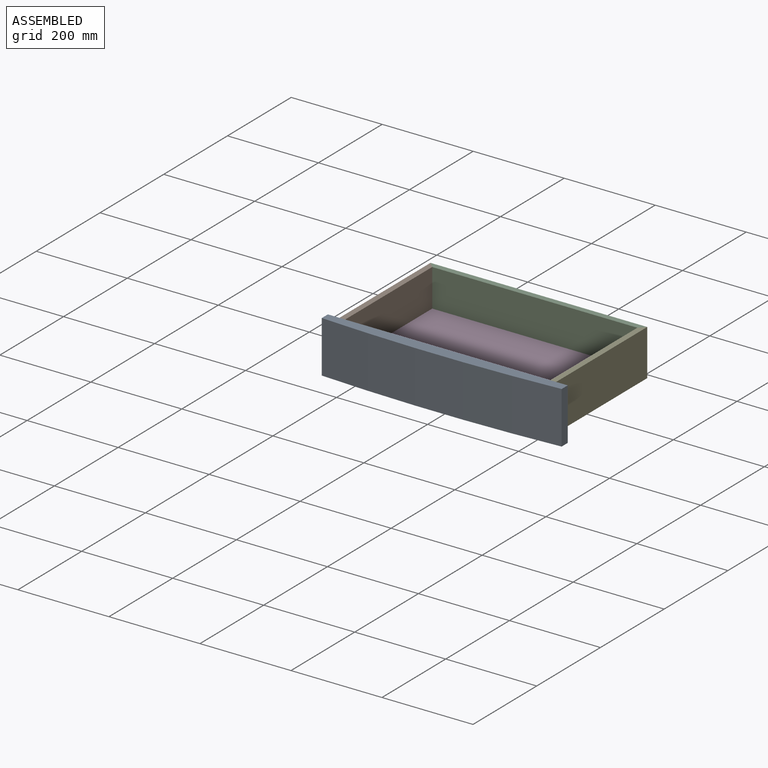
[diagram: assembled view]
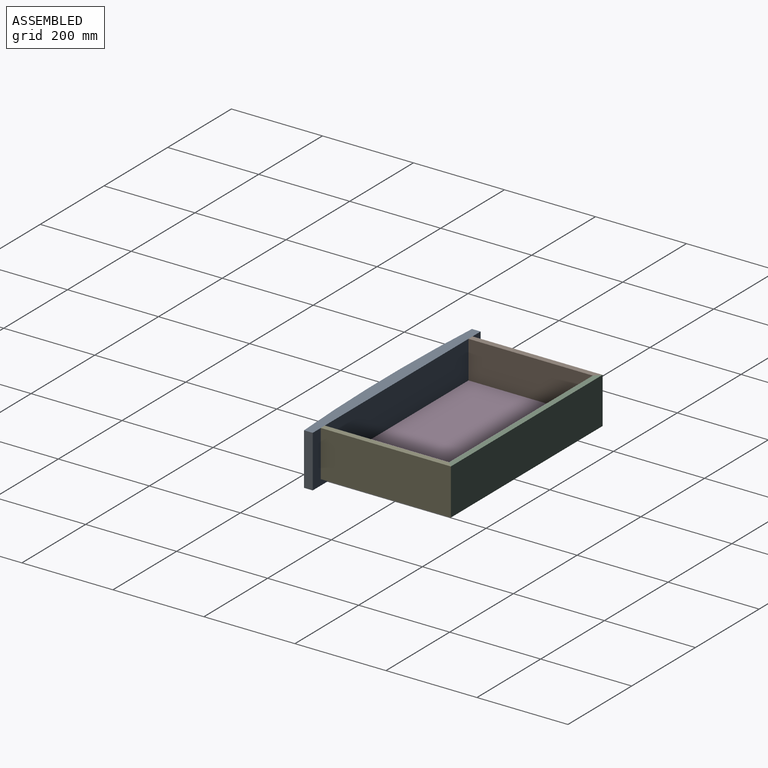
[diagram: assembled view, second angle]
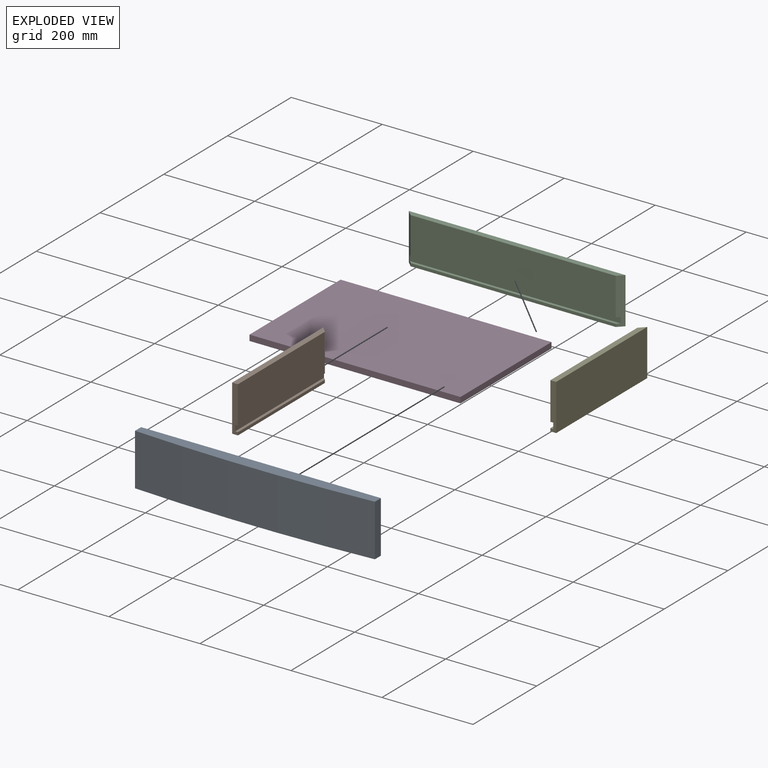
[diagram: exploded view]
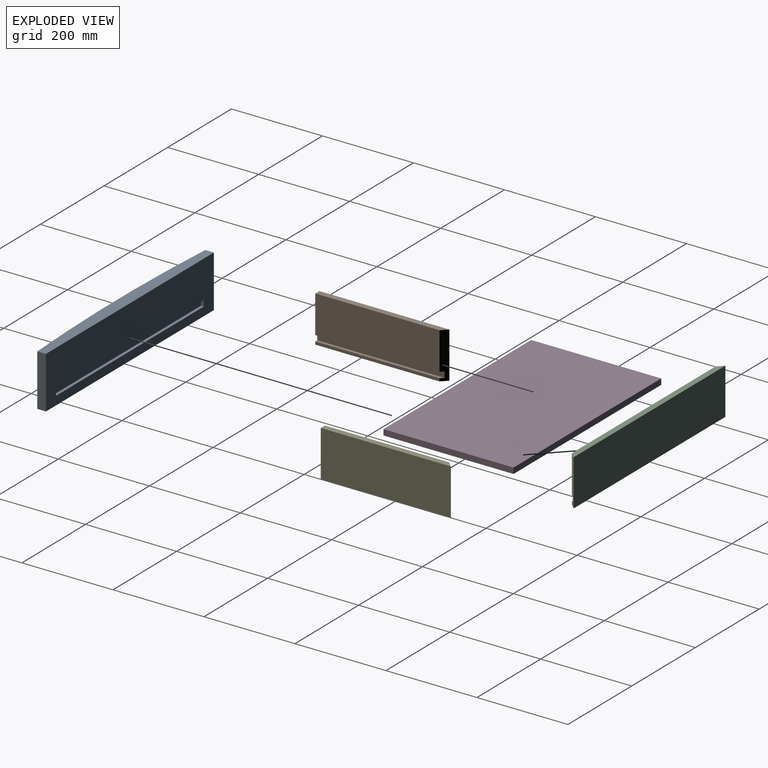
[diagram: exploded view, second angle]
ASSEMBLY  parts=5 mates=4
PART A: 11 faces, bbox 527.1x27.7x114.3 mm
  f0: plane 527.05x114.3mm, normal (0,1,0), area 54354.7mm2, adj f1,f3,f4,f5,f6,f7,f8,f9
  f1: plane 114.3x19.05mm, normal (1,0,0), area 2177.4mm2, adj f0,f2,f4,f5
  f2: cylinder r=4035.43mm len=527.05mm, axis (0,0,1), area 60284.7mm2, adj f1,f3,f4,f5
  f3: plane 114.3x19.05mm, normal (-1,0,0), area 2177.4mm2, adj f0,f2,f4,f5
  f4: plane 527.05x27.66mm, normal (0,0,1), area 13067.5mm2, adj f0,f1,f2,f3
  f5: plane 527.05x27.66mm, normal (0,0,-1), area 13067.5mm2, adj f0,f1,f2,f3
  f6: plane 463.55x6.35mm, normal (0,0,1), area 2943.5mm2, adj f0,f7,f9,f10
  f7: plane 12.7x6.35mm, normal (1,0,0), area 80.6mm2, adj f0,f6,f8,f10
  f8: plane 463.55x6.35mm, normal (0,0,-1), area 2943.5mm2, adj f0,f7,f9,f10
  f9: plane 12.7x6.35mm, normal (-1,0,0), area 80.6mm2, adj f0,f6,f8,f10
  f10: plane 463.55x12.7mm, normal (0,1,0), area 5887.1mm2, adj f6,f7,f8,f9
PART B: 10 faces, bbox 12.7x285.8x101.6 mm
  f0: plane 273.05x82.55mm, normal (1,0,0), area 22540.3mm2, adj f2,f3,f6,f8
  f1: plane 285.75x12.7mm, normal (0,0,-1), area 3548.4mm2, adj f2,f4,f5,f6
  f2: plane 101.6x12.7mm, normal (0.71,0.71,0), area 1710.7mm2, adj f0,f1,f3,f4,f5,f7,f8,f9
  f3: plane 285.75x12.7mm, normal (0,0,1), area 3548.4mm2, adj f0,f2,f5,f6
  f4: plane 273.05x6.35mm, normal (1,0,0), area 1733.9mm2, adj f1,f2,f6,f7
  f5: plane 285.75x101.6mm, normal (-1,0,0), area 29032.2mm2, adj f1,f2,f3,f6
  f6: plane 101.6x12.7mm, normal (0,-1,0), area 1209.7mm2, adj f0,f1,f3,f4,f5,f7,f8,f9
  f7: plane 279.4x6.35mm, normal (0,0,1), area 1754mm2, adj f2,f4,f6,f9
  f8: plane 279.4x6.35mm, normal (0,0,-1), area 1754mm2, adj f0,f2,f6,f9
  f9: plane 279.4x12.7mm, normal (1,0,0), area 3548.4mm2, adj f2,f6,f7,f8
PART C: 10 faces, bbox 476.3x12.7x101.6 mm
  f0: plane 450.85x82.55mm, normal (0,-1,0), area 37217.7mm2, adj f3,f4,f5,f8
  f1: plane 476.25x12.7mm, normal (0,0,-1), area 5887.1mm2, adj f2,f4,f5,f6
  f2: plane 476.25x101.6mm, normal (0,1,0), area 48387mm2, adj f1,f3,f4,f5
  f3: plane 476.25x12.7mm, normal (0,0,1), area 5887.1mm2, adj f0,f2,f4,f5
  f4: plane 101.6x12.7mm, normal (0.71,-0.71,0), area 1710.7mm2, adj f0,f1,f2,f3,f6,f7,f8,f9
  f5: plane 101.6x12.7mm, normal (-0.71,-0.71,0), area 1710.7mm2, adj f0,f1,f2,f3,f6,f7,f8,f9
  f6: plane 450.85x6.35mm, normal (0,-1,0), area 2862.9mm2, adj f1,f4,f5,f7
  f7: plane 463.55x6.35mm, normal (0,0,1), area 2903.2mm2, adj f4,f5,f6,f9
  f8: plane 463.55x6.35mm, normal (0,0,-1), area 2903.2mm2, adj f0,f4,f5,f9
  f9: plane 463.55x12.7mm, normal (0,-1,0), area 5887.1mm2, adj f4,f5,f7,f8
PART D: 6 faces, bbox 463.6x285.8x12.7 mm
  f0: plane 463.55x285.75mm, normal (0,0,-1), area 132459.4mm2, adj f1,f3,f4,f5
  f1: plane 285.75x12.7mm, normal (-1,0,0), area 3629mm2, adj f0,f2,f4,f5
  f2: plane 463.55x285.75mm, normal (0,0,1), area 132459.4mm2, adj f1,f3,f4,f5
  f3: plane 285.75x12.7mm, normal (1,0,0), area 3629mm2, adj f0,f2,f4,f5
  f4: plane 463.55x12.7mm, normal (0,1,0), area 5887.1mm2, adj f0,f1,f2,f3
  f5: plane 463.55x12.7mm, normal (0,-1,0), area 5887.1mm2, adj f0,f1,f2,f3
PART E: 10 faces, bbox 12.7x285.8x101.6 mm
  f0: plane 273.05x82.55mm, normal (-1,0,0), area 22540.3mm2, adj f2,f3,f6,f8
  f1: plane 285.75x12.7mm, normal (0,0,-1), area 3548.4mm2, adj f2,f4,f5,f6
  f2: plane 101.6x12.7mm, normal (-0.71,0.71,0), area 1710.7mm2, adj f0,f1,f3,f4,f5,f7,f8,f9
  f3: plane 285.75x12.7mm, normal (0,0,1), area 3548.4mm2, adj f0,f2,f5,f6
  f4: plane 273.05x6.35mm, normal (-1,0,0), area 1733.9mm2, adj f1,f2,f6,f7
  f5: plane 285.75x101.6mm, normal (1,0,0), area 29032.2mm2, adj f1,f2,f3,f6
  f6: plane 101.6x12.7mm, normal (0,-1,0), area 1209.7mm2, adj f0,f1,f3,f4,f5,f7,f8,f9
  f7: plane 279.4x6.35mm, normal (0,0,1), area 1754mm2, adj f2,f4,f6,f9
  f8: plane 279.4x6.35mm, normal (0,0,-1), area 1754mm2, adj f0,f2,f6,f9
  f9: plane 279.4x12.7mm, normal (-1,0,0), area 3548.4mm2, adj f2,f6,f7,f8
PLACE A t=(0,35.84,95.25)mm
PLACE B t=(0,35.84,95.25)mm
PLACE C t=(0,35.84,95.25)mm
PLACE D rot(axis=(1,0,0),180deg) t=(0,-35.84,-82.55)mm
PLACE E t=(0,35.84,95.25)mm
MATE fastened E.f9 <-> D.f3  axis (-1,0,0) through (231.77,142.88,6.35)mm
MATE fastened C.f4 <-> E.f2  axis (0.71,-0.71,0) through (231.99,143.09,46.99)mm
MATE fastened B.f9 <-> D.f1  axis (1,0,0) through (-231.78,142.88,6.35)mm
MATE fastened A.f10 <-> D.f4  axis (0,1,0) through (0,-142.88,6.35)mm
